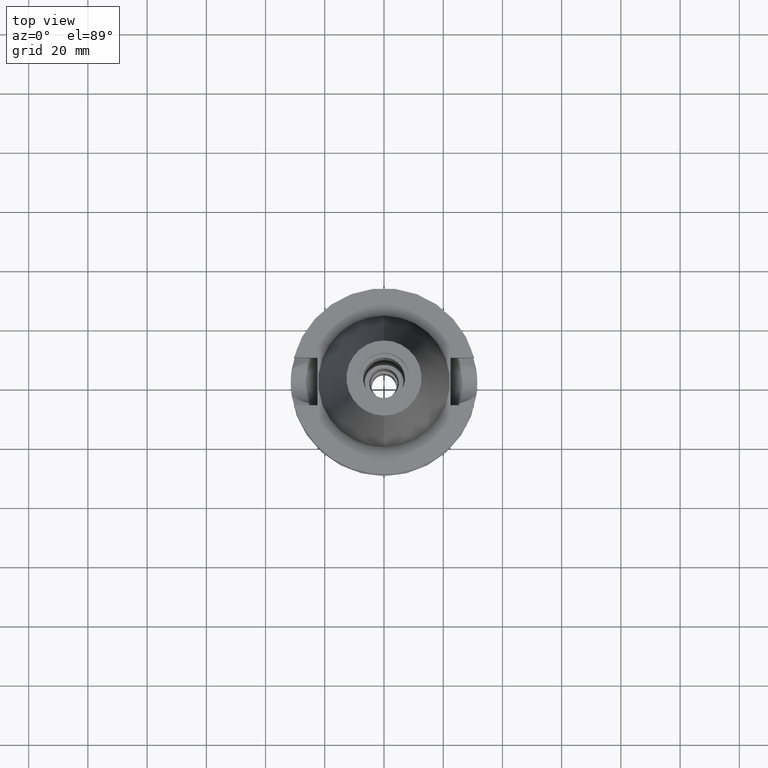
[diagram: clean part render]
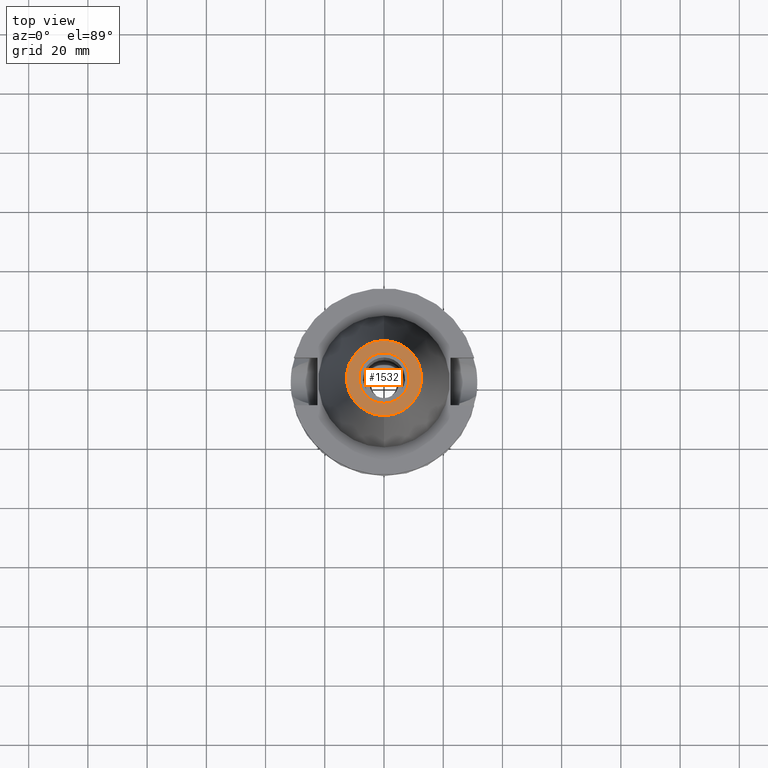
[diagram: same view with one face highlighted and labeled with its STEP entity id]
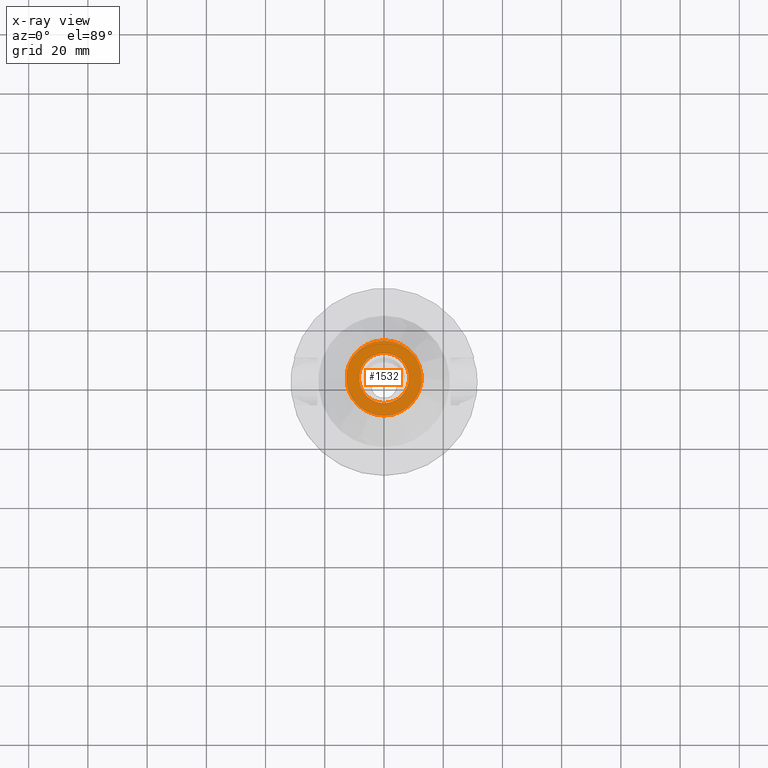
[diagram: x-ray of the same camera — body ghosted, the highlighted face saturated]
A machine part, top view. The second image highlights one B-rep face of the part: STEP entity #1532.
The next image is the same camera in x-ray: the body ghosted, the highlighted face saturated — about 0% of this face is hidden behind the body in this view.
In plain terms, the highlighted planar face has unit normal (0, 0, -1).
Its self-contained STEP definition (entity closure, byte-faithful):
#19 = CIRCLE ( 'NONE', #1145, 12.68766899429999917 ) ;
#21 = EDGE_LOOP ( 'NONE', ( #76, #353 ) ) ;
#76 = ORIENTED_EDGE ( 'NONE', *, *, #940, .F. ) ;
#133 = CARTESIAN_POINT ( 'NONE',  ( 0.0000000000000000000, 12.68766899429999917, 65.40000000000000568 ) ) ;
#203 = CARTESIAN_POINT ( 'NONE',  ( 0.0000000000000000000, 2.025565805790000122E-14, 65.40000000000000568 ) ) ;
#353 = ORIENTED_EDGE ( 'NONE', *, *, #2291, .F. ) ;
#486 = CARTESIAN_POINT ( 'NONE',  ( 0.0000000000000000000, 8.500000000000000000, 65.40000000000000568 ) ) ;
#487 = CIRCLE ( 'NONE', #987, 8.500000000000000000 ) ;
#597 = CARTESIAN_POINT ( 'NONE',  ( 0.0000000000000000000, 2.162542550273999956E-14, 65.40000000000000568 ) ) ;
#618 = FACE_OUTER_BOUND ( 'NONE', #21, .T. ) ;
#662 = CARTESIAN_POINT ( 'NONE',  ( 0.0000000000000000000, 1.625106302469000024E-14, 65.40000000000000568 ) ) ;
#742 = AXIS2_PLACEMENT_3D ( 'NONE', #2124, #912, #1424 ) ;
#876 = PLANE ( 'NONE',  #1594 ) ;
#911 = DIRECTION ( 'NONE',  ( 0.0000000000000000000, 1.000000000000000000, 0.0000000000000000000 ) ) ;
#912 = DIRECTION ( 'NONE',  ( 0.0000000000000000000, 0.0000000000000000000, 1.000000000000000000 ) ) ;
#933 = AXIS2_PLACEMENT_3D ( 'NONE', #2505, #1521, #2220 ) ;
#938 = CIRCLE ( 'NONE', #742, 8.500000000000000000 ) ;
#940 = EDGE_CURVE ( 'NONE', #1296, #3143, #19, .T. ) ;
#943 = EDGE_LOOP ( 'NONE', ( #2218, #2321 ) ) ;
#987 = AXIS2_PLACEMENT_3D ( 'NONE', #597, #3063, #2060 ) ;
#1145 = AXIS2_PLACEMENT_3D ( 'NONE', #662, #3083, #911 ) ;
#1155 = VERTEX_POINT ( 'NONE', #486 ) ;
#1169 = DIRECTION ( 'NONE',  ( 0.0000000000000000000, 0.0000000000000000000, -1.000000000000000000 ) ) ;
#1296 = VERTEX_POINT ( 'NONE', #133 ) ;
#1327 = CARTESIAN_POINT ( 'NONE',  ( 0.0000000000000000000, -8.500000000000000000, 65.40000000000000568 ) ) ;
#1424 = DIRECTION ( 'NONE',  ( 0.0000000000000000000, 1.000000000000000000, 0.0000000000000000000 ) ) ;
#1521 = DIRECTION ( 'NONE',  ( 0.0000000000000000000, 0.0000000000000000000, -1.000000000000000000 ) ) ;
#1532 = ADVANCED_FACE ( 'NONE', ( #618, #2370 ), #876, .F. ) ;
#1594 = AXIS2_PLACEMENT_3D ( 'NONE', #203, #1169, #3111 ) ;
#1658 = CIRCLE ( 'NONE', #933, 12.68766899429999917 ) ;
#1839 = VERTEX_POINT ( 'NONE', #1327 ) ;
#2060 = DIRECTION ( 'NONE',  ( 0.0000000000000000000, -1.000000000000000000, 0.0000000000000000000 ) ) ;
#2124 = CARTESIAN_POINT ( 'NONE',  ( 0.0000000000000000000, 2.162542550273999956E-14, 65.40000000000000568 ) ) ;
#2218 = ORIENTED_EDGE ( 'NONE', *, *, #3109, .F. ) ;
#2220 = DIRECTION ( 'NONE',  ( 0.0000000000000000000, -1.000000000000000000, 0.0000000000000000000 ) ) ;
#2291 = EDGE_CURVE ( 'NONE', #3143, #1296, #1658, .T. ) ;
#2321 = ORIENTED_EDGE ( 'NONE', *, *, #2998, .F. ) ;
#2370 = FACE_BOUND ( 'NONE', #943, .T. ) ;
#2505 = CARTESIAN_POINT ( 'NONE',  ( 0.0000000000000000000, 1.625106302469000024E-14, 65.40000000000000568 ) ) ;
#2566 = CARTESIAN_POINT ( 'NONE',  ( 0.0000000000000000000, -12.68766899429999917, 65.40000000000000568 ) ) ;
#2998 = EDGE_CURVE ( 'NONE', #1839, #1155, #487, .T. ) ;
#3063 = DIRECTION ( 'NONE',  ( 0.0000000000000000000, 0.0000000000000000000, 1.000000000000000000 ) ) ;
#3083 = DIRECTION ( 'NONE',  ( 0.0000000000000000000, 0.0000000000000000000, -1.000000000000000000 ) ) ;
#3109 = EDGE_CURVE ( 'NONE', #1155, #1839, #938, .T. ) ;
#3111 = DIRECTION ( 'NONE',  ( 0.0000000000000000000, -1.000000000000000000, 0.0000000000000000000 ) ) ;
#3143 = VERTEX_POINT ( 'NONE', #2566 ) ;